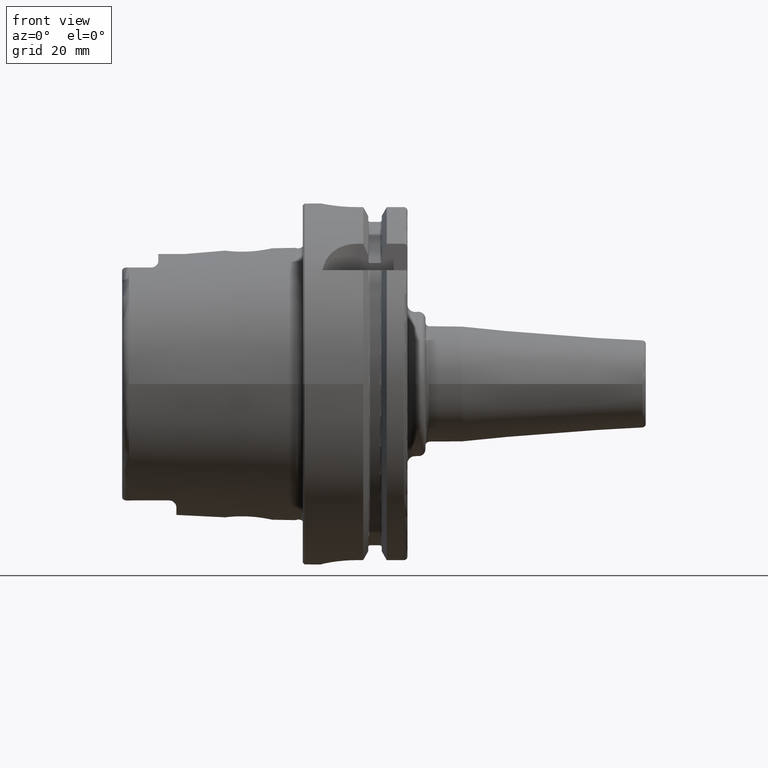
[diagram: clean part render]
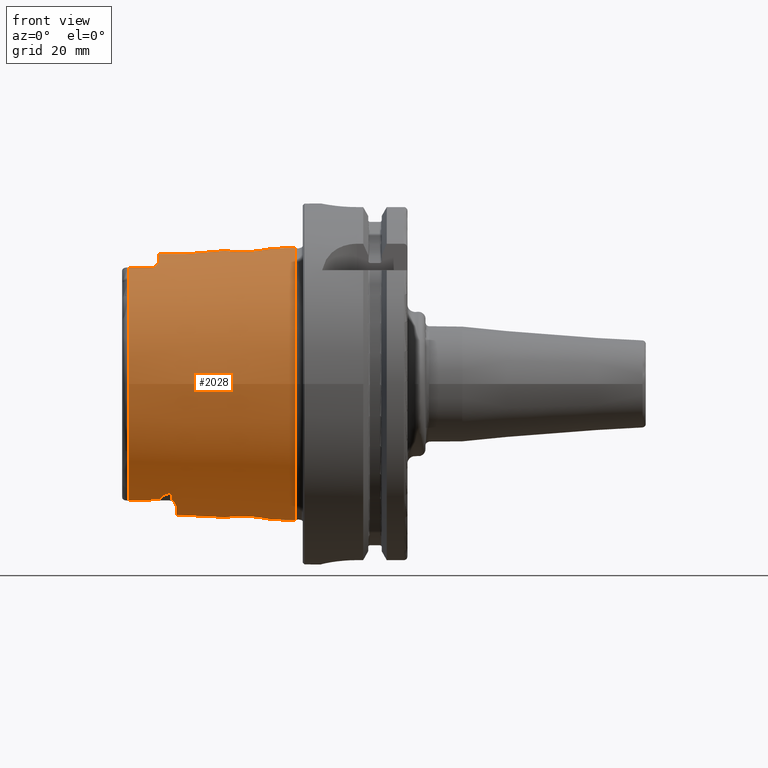
[diagram: same view with one face highlighted and labeled with its STEP entity id]
A machine part, front view. The second image highlights one B-rep face of the part: STEP entity #2028.
In plain terms, the highlighted conical surface has half-angle 2.868 deg.
Its self-contained STEP definition (entity closure, byte-faithful):
#15=(
BOUNDED_CURVE()
B_SPLINE_CURVE(2,(#3478,#3479,#3480),.UNSPECIFIED.,.F.,.F.)
B_SPLINE_CURVE_WITH_KNOTS((3,3),(0.584552731684763,1.01274112792473),
 .UNSPECIFIED.)
CURVE()
GEOMETRIC_REPRESENTATION_ITEM()
RATIONAL_B_SPLINE_CURVE((1.00299496728687,1.00299496728687,1.00138797244737))
REPRESENTATION_ITEM('')
);
#16=(
BOUNDED_CURVE()
B_SPLINE_CURVE(2,(#3547,#3548,#3549),.UNSPECIFIED.,.F.,.F.)
B_SPLINE_CURVE_WITH_KNOTS((3,3),(0.156364335444822,0.584552731684782),
 .UNSPECIFIED.)
CURVE()
GEOMETRIC_REPRESENTATION_ITEM()
RATIONAL_B_SPLINE_CURVE((1.00138797244738,1.00299496728688,1.00299496728688))
REPRESENTATION_ITEM('')
);
#32=B_SPLINE_CURVE_WITH_KNOTS('',3,(#3176,#3177,#3178,#3179,#3180,#3181,
#3182,#3183,#3184,#3185,#3186,#3187,#3188,#3189,#3190,#3191,#3192,#3193),
 .UNSPECIFIED.,.F.,.F.,(4,2,2,2,2,2,2,2,4),(1.82139636410114,1.83165892733975,
1.84192149057836,1.86244661705558,1.93660019990987,2.01075378276416,2.21475865094393,
2.41876351912369,2.7012608097453),.UNSPECIFIED.);
#34=B_SPLINE_CURVE_WITH_KNOTS('',3,(#3249,#3250,#3251,#3252,#3253,#3254,
#3255,#3256),.UNSPECIFIED.,.F.,.F.,(4,2,2,4),(2.11861414458057,2.2150675983984,
2.41910198133518,2.70152248778045),.UNSPECIFIED.);
#35=B_SPLINE_CURVE_WITH_KNOTS('',3,(#3273,#3274,#3275,#3276,#3277,#3278,
#3279,#3280),.UNSPECIFIED.,.F.,.F.,(4,2,2,4),(0.941785791175404,1.22420629762067,
1.42824068055745,1.52469413437528),.UNSPECIFIED.);
#39=B_SPLINE_CURVE_WITH_KNOTS('',3,(#3427,#3428,#3429,#3430,#3431,#3432,
#3433,#3434,#3435,#3436,#3437,#3438,#3439,#3440,#3441,#3442,#3443,#3444,
#3445,#3446,#3447,#3448,#3449,#3450),.UNSPECIFIED.,.T.,.F.,(4,1,1,1,1,1,
1,1,1,1,1,1,1,1,1,1,1,1,1,1,1,4),(-3.62526060553391,-3.36631341942435,-3.23683982636957,
-3.10736623331478,-2.91315584373261,-2.84841904720522,-2.58947186109565,
-2.41684040368928,-2.2442089462829,-2.07157748887652,-1.89894603147015,
-1.72631457406377,-1.55368311665739,-1.42420952360261,-1.29473593054783,
-1.16526233749304,-1.03578874443826,-0.776841558328696,-0.517894372219131,
-0.388420779164348,-0.258947186109565,0.),.UNSPECIFIED.);
#40=B_SPLINE_CURVE_WITH_KNOTS('',3,(#3459,#3460,#3461,#3462,#3463,#3464,
#3465,#3466,#3467,#3468,#3469,#3470,#3471,#3472,#3473,#3474,#3475,#3476),
 .UNSPECIFIED.,.F.,.F.,(4,2,2,2,2,2,2,2,4),(0.941531918456969,1.22402920907858,
1.42803407725834,1.6320389454381,1.70619252829239,1.78034611114668,1.80087123762391,
1.81113380086252,1.82139636410113),.UNSPECIFIED.);
#41=B_SPLINE_CURVE_WITH_KNOTS('',3,(#3482,#3483,#3484,#3485,#3486,#3487,
#3488,#3489,#3490,#3491,#3492,#3493,#3494,#3495,#3496,#3497,#3498,#3499),
 .UNSPECIFIED.,.F.,.F.,(4,2,2,2,2,2,2,2,4),(0.,0.135304265390776,0.202956398086165,
0.270608530781553,0.285985760505599,0.293674375367623,0.301362990229646,
0.309065814809453,0.312240543595572),.UNSPECIFIED.);
#42=B_SPLINE_CURVE_WITH_KNOTS('',3,(#3501,#3502,#3503,#3504,#3505,#3506,
#3507,#3508,#3509,#3510),.UNSPECIFIED.,.F.,.F.,(4,2,2,2,4),(0.355882377061024,
0.475337474766741,0.814409309765131,0.916871755852837,0.96838361555764),
 .UNSPECIFIED.);
#43=B_SPLINE_CURVE_WITH_KNOTS('',3,(#3514,#3515,#3516,#3517,#3518,#3519,
#3520,#3521,#3522,#3523,#3524,#3525,#3526,#3527),.UNSPECIFIED.,.F.,.F.,
(4,2,2,2,2,2,4),(0.968383615555967,0.974150710871355,1.03435732628962,1.16414359525928,
1.35274565404034,1.53834753535542,1.54014497255958),.UNSPECIFIED.);
#44=B_SPLINE_CURVE_WITH_KNOTS('',3,(#3529,#3530,#3531,#3532,#3533,#3534,
#3535,#3536,#3537,#3538,#3539,#3540,#3541,#3542,#3543,#3544,#3545,#3546),
 .UNSPECIFIED.,.F.,.F.,(4,2,2,2,2,2,2,2,4),(0.892798921569994,0.895973650356143,
0.90367647493595,0.911365089797973,0.919053704659997,0.934430934384044,
1.00208306707943,1.06973519977482,1.2050394651656),.UNSPECIFIED.);
#45=B_SPLINE_CURVE_WITH_KNOTS('',3,(#3552,#3553,#3554,#3555,#3556,#3557,
#3558,#3559,#3560,#3561,#3562,#3563,#3564,#3565,#3566,#3567),
 .UNSPECIFIED.,.F.,.F.,(4,2,2,2,2,2,2,4),(0.951925610593878,1.05814966490865,
1.29620724180457,1.38654842311884,1.45440735886397,1.51777192589664,1.5739379106757,
1.5771381713645),.UNSPECIFIED.);
#46=B_SPLINE_CURVE_WITH_KNOTS('',3,(#3570,#3571,#3572,#3573,#3574,#3575,
#3576,#3577,#3578,#3579,#3580,#3581,#3582,#3583),.UNSPECIFIED.,.F.,.F.,
(4,2,2,2,2,2,4),(0.58599893881899,0.631178615969429,0.682399631951053,0.741327952008913,
0.839467365471938,1.06407790070645,1.25314135766173),.UNSPECIFIED.);
#47=B_SPLINE_CURVE_WITH_KNOTS('',3,(#3586,#3587,#3588,#3589,#3590,#3591,
#3592,#3593,#3594,#3595,#3596,#3597,#3598,#3599,#3600,#3601,#3602,#3603,
#3604,#3605,#3606,#3607,#3608,#3609,#3610,#3611),.UNSPECIFIED.,.T.,.F.,
(4,1,1,1,1,1,1,1,1,1,1,1,1,1,1,1,1,1,1,1,1,1,1,4),(-3.62526060553391,-3.36631341942435,
-3.23683982636957,-3.13973463157848,-3.10736623331478,-2.84841904720522,
-2.58947186109565,-2.41684040368928,-2.2442089462829,-2.2010510819313,-2.07157748887652,
-1.89894603147015,-1.72631457406377,-1.55368311665739,-1.42420952360261,
-1.29473593054783,-1.16526233749304,-1.03578874443826,-0.776841558328696,
-0.712104761801304,-0.51789437221913,-0.388420779164348,-0.258947186109565,
0.),.UNSPECIFIED.);
#92=FACE_BOUND('',#373,.T.);
#93=FACE_BOUND('',#374,.T.);
#244=FACE_OUTER_BOUND('',#372,.T.);
#372=EDGE_LOOP('',(#1490,#1491,#1492,#1493,#1494,#1495,#1496,#1497,#1498,
#1499,#1500,#1501,#1502,#1503,#1504,#1505,#1506,#1507,#1508,#1509));
#373=EDGE_LOOP('',(#1510));
#374=EDGE_LOOP('',(#1511));
#505=LINE('',#3455,#611);
#611=VECTOR('',#2609,36.7524901081155);
#720=CIRCLE('',#2222,37.9073016032064);
#721=CIRCLE('',#2223,35.5976786130245);
#722=CIRCLE('',#2224,36.25399498998);
#723=CIRCLE('',#2225,35.5976786130245);
#724=CIRCLE('',#2226,36.003493987976);
#725=CIRCLE('',#2227,35.5976786130245);
#858=VERTEX_POINT('',#3162);
#859=VERTEX_POINT('',#3175);
#875=VERTEX_POINT('',#3235);
#876=VERTEX_POINT('',#3248);
#882=VERTEX_POINT('',#3270);
#883=VERTEX_POINT('',#3272);
#886=VERTEX_POINT('',#3395);
#889=VERTEX_POINT('',#3452);
#890=VERTEX_POINT('',#3454);
#891=VERTEX_POINT('',#3456);
#892=VERTEX_POINT('',#3458);
#893=VERTEX_POINT('',#3477);
#894=VERTEX_POINT('',#3481);
#895=VERTEX_POINT('',#3500);
#896=VERTEX_POINT('',#3511);
#897=VERTEX_POINT('',#3513);
#898=VERTEX_POINT('',#3528);
#899=VERTEX_POINT('',#3551);
#900=VERTEX_POINT('',#3568);
#901=VERTEX_POINT('',#3585);
#1080=EDGE_CURVE('',#859,#858,#32,.T.);
#1102=EDGE_CURVE('',#876,#875,#34,.T.);
#1110=EDGE_CURVE('',#883,#882,#35,.T.);
#1118=EDGE_CURVE('',#886,#886,#39,.T.);
#1119=EDGE_CURVE('',#889,#889,#720,.T.);
#1120=EDGE_CURVE('',#889,#890,#505,.T.);
#1121=EDGE_CURVE('',#890,#891,#721,.T.);
#1122=EDGE_CURVE('',#891,#892,#40,.T.);
#1123=EDGE_CURVE('',#892,#893,#15,.T.);
#1124=EDGE_CURVE('',#894,#893,#41,.T.);
#1125=EDGE_CURVE('',#895,#894,#42,.T.);
#1126=EDGE_CURVE('',#895,#896,#722,.T.);
#1127=EDGE_CURVE('',#897,#896,#43,.T.);
#1128=EDGE_CURVE('',#898,#897,#44,.T.);
#1129=EDGE_CURVE('',#898,#859,#16,.T.);
#1130=EDGE_CURVE('',#858,#883,#723,.T.);
#1131=EDGE_CURVE('',#899,#882,#45,.T.);
#1132=EDGE_CURVE('',#899,#900,#724,.T.);
#1133=EDGE_CURVE('',#876,#900,#46,.T.);
#1134=EDGE_CURVE('',#875,#890,#725,.T.);
#1135=EDGE_CURVE('',#901,#901,#47,.T.);
#1490=ORIENTED_EDGE('',*,*,#1119,.F.);
#1491=ORIENTED_EDGE('',*,*,#1120,.T.);
#1492=ORIENTED_EDGE('',*,*,#1121,.T.);
#1493=ORIENTED_EDGE('',*,*,#1122,.T.);
#1494=ORIENTED_EDGE('',*,*,#1123,.T.);
#1495=ORIENTED_EDGE('',*,*,#1124,.F.);
#1496=ORIENTED_EDGE('',*,*,#1125,.F.);
#1497=ORIENTED_EDGE('',*,*,#1126,.T.);
#1498=ORIENTED_EDGE('',*,*,#1127,.F.);
#1499=ORIENTED_EDGE('',*,*,#1128,.F.);
#1500=ORIENTED_EDGE('',*,*,#1129,.T.);
#1501=ORIENTED_EDGE('',*,*,#1080,.T.);
#1502=ORIENTED_EDGE('',*,*,#1130,.T.);
#1503=ORIENTED_EDGE('',*,*,#1110,.T.);
#1504=ORIENTED_EDGE('',*,*,#1131,.F.);
#1505=ORIENTED_EDGE('',*,*,#1132,.T.);
#1506=ORIENTED_EDGE('',*,*,#1133,.F.);
#1507=ORIENTED_EDGE('',*,*,#1102,.T.);
#1508=ORIENTED_EDGE('',*,*,#1134,.T.);
#1509=ORIENTED_EDGE('',*,*,#1120,.F.);
#1510=ORIENTED_EDGE('',*,*,#1135,.F.);
#1511=ORIENTED_EDGE('',*,*,#1118,.F.);
#1984=CONICAL_SURFACE('',#2221,36.7524901081155,0.0500583457465976);
#2028=ADVANCED_FACE('',(#244,#92,#93),#1984,.T.);
#2221=AXIS2_PLACEMENT_3D('',#3451,#2605,#2606);
#2222=AXIS2_PLACEMENT_3D('',#3453,#2607,#2608);
#2223=AXIS2_PLACEMENT_3D('',#3457,#2610,#2611);
#2224=AXIS2_PLACEMENT_3D('',#3512,#2612,#2613);
#2225=AXIS2_PLACEMENT_3D('',#3550,#2614,#2615);
#2226=AXIS2_PLACEMENT_3D('',#3569,#2616,#2617);
#2227=AXIS2_PLACEMENT_3D('',#3584,#2618,#2619);
#2605=DIRECTION('center_axis',(1.,0.,0.));
#2606=DIRECTION('ref_axis',(0.,1.,0.));
#2607=DIRECTION('center_axis',(1.,0.,0.));
#2608=DIRECTION('ref_axis',(0.,0.,-1.));
#2609=DIRECTION('',(-0.998747342623037,0.0500374420151823,6.12781932014143E-18));
#2610=DIRECTION('center_axis',(1.,0.,0.));
#2611=DIRECTION('ref_axis',(0.,0.,-1.));
#2612=DIRECTION('center_axis',(1.,0.,0.));
#2613=DIRECTION('ref_axis',(0.,1.,0.));
#2614=DIRECTION('center_axis',(1.,0.,0.));
#2615=DIRECTION('ref_axis',(0.,0.,-1.));
#2616=DIRECTION('center_axis',(1.,0.,0.));
#2617=DIRECTION('ref_axis',(0.,1.,0.));
#2618=DIRECTION('center_axis',(1.,0.,0.));
#2619=DIRECTION('ref_axis',(0.,0.,-1.));
#3162=CARTESIAN_POINT('',(-48.1000748840304,15.0787152148571,-32.2463497175327));
#3175=CARTESIAN_POINT('',(-39.3086860506441,17.2220784153651,-31.6567015600095));
#3176=CARTESIAN_POINT('Ctrl Pts',(-39.3086860506439,17.2220784153651,-31.6567015600096));
#3177=CARTESIAN_POINT('Ctrl Pts',(-39.3086860506439,17.1920288621925,-31.6730493074242));
#3178=CARTESIAN_POINT('Ctrl Pts',(-39.3149778656361,17.1622985367362,-31.6888083298259));
#3179=CARTESIAN_POINT('Ctrl Pts',(-39.3379356243704,17.1047575471073,-31.7185977246152));
#3180=CARTESIAN_POINT('Ctrl Pts',(-39.3545931085757,17.0769444761517,-31.7326299669));
#3181=CARTESIAN_POINT('Ctrl Pts',(-39.41492287308,16.9977687004959,-31.7717242618145));
#3182=CARTESIAN_POINT('Ctrl Pts',(-39.4690330405114,16.9505386197656,-31.7938497879436));
#3183=CARTESIAN_POINT('Ctrl Pts',(-39.7137538085318,16.7691556019457,-31.8763882092881));
#3184=CARTESIAN_POINT('Ctrl Pts',(-39.9557031082111,16.6668123685081,-31.9161154581445));
#3185=CARTESIAN_POINT('Ctrl Pts',(-40.4538120390228,16.4807891402054,-31.9844991546727));
#3186=CARTESIAN_POINT('Ctrl Pts',(-40.7121103138056,16.4018770942044,-32.0104206666339));
#3187=CARTESIAN_POINT('Ctrl Pts',(-41.6015350915672,16.1516844838416,-32.0879931345296));
#3188=CARTESIAN_POINT('Ctrl Pts',(-42.2774968259687,16.0065639510366,-32.1225120780024));
#3189=CARTESIAN_POINT('Ctrl Pts',(-43.6583569770469,15.7387900082285,-32.1775602969968));
#3190=CARTESIAN_POINT('Ctrl Pts',(-44.3638273319757,15.6187903492069,-32.19660809961));
#3191=CARTESIAN_POINT('Ctrl Pts',(-46.0708874643597,15.3507400024476,-32.2307282620297));
#3192=CARTESIAN_POINT('Ctrl Pts',(-47.0815953489825,15.2100460868363,-32.2412671998384));
#3193=CARTESIAN_POINT('Ctrl Pts',(-48.1000748840303,15.0787152148571,-32.2463497175327));
#3235=CARTESIAN_POINT('',(-48.1000748840304,-15.0787152148571,32.2463497175327));
#3248=CARTESIAN_POINT('',(-42.0000000002536,-16.0736316900317,32.1042809403702));
#3249=CARTESIAN_POINT('Ctrl Pts',(-42.0000000002663,-16.0736316900856,32.1042809403568));
#3250=CARTESIAN_POINT('Ctrl Pts',(-42.3189705746531,-16.0023328339441,32.122106579912));
#3251=CARTESIAN_POINT('Ctrl Pts',(-42.6420078541405,-15.9358744877955,32.1370456038288));
#3252=CARTESIAN_POINT('Ctrl Pts',(-43.6589764923173,-15.7386786248219,32.177580265585));
#3253=CARTESIAN_POINT('Ctrl Pts',(-44.364550975751,-15.6186692080222,32.1966265955614));
#3254=CARTESIAN_POINT('Ctrl Pts',(-46.0714496280263,-15.3506621075505,32.2307339275334));
#3255=CARTESIAN_POINT('Ctrl Pts',(-47.0818768820559,-15.210009783717,32.2412686047727));
#3256=CARTESIAN_POINT('Ctrl Pts',(-48.1000748840304,-15.0787152148571,32.2463497175327));
#3270=CARTESIAN_POINT('',(-42.0000000002536,16.0736316900317,32.1042809403702));
#3272=CARTESIAN_POINT('',(-48.1000748840304,15.0787152148571,32.2463497175327));
#3273=CARTESIAN_POINT('Ctrl Pts',(-48.1000748840304,15.0787152148571,32.2463497175327));
#3274=CARTESIAN_POINT('Ctrl Pts',(-47.0818768820559,15.210009783717,32.2412686047727));
#3275=CARTESIAN_POINT('Ctrl Pts',(-46.0714496280263,15.3506621075505,32.2307339275334));
#3276=CARTESIAN_POINT('Ctrl Pts',(-44.364550975751,15.6186692080222,32.1966265955614));
#3277=CARTESIAN_POINT('Ctrl Pts',(-43.6589764923172,15.7386786248219,32.177580265585));
#3278=CARTESIAN_POINT('Ctrl Pts',(-42.6420078541405,15.9358744877955,32.1370456038288));
#3279=CARTESIAN_POINT('Ctrl Pts',(-42.3189705746531,16.0023328339441,32.122106579912));
#3280=CARTESIAN_POINT('Ctrl Pts',(-42.0000000002663,16.0736316900856,32.1042809403568));
#3395=CARTESIAN_POINT('',(-15.0482435047104,6.49272743621066,-36.6834276129017));
#3427=CARTESIAN_POINT('Ctrl Pts',(-15.0482435047104,6.49272743621066,-36.6834276129017));
#3428=CARTESIAN_POINT('Ctrl Pts',(-14.1135545674523,6.50026995600844,-36.7296485677624));
#3429=CARTESIAN_POINT('Ctrl Pts',(-12.6125862949105,6.18830817118321,-36.8646717861154));
#3430=CARTESIAN_POINT('Ctrl Pts',(-10.9355263213122,5.13385394303874,-37.1097128714846));
#3431=CARTESIAN_POINT('Ctrl Pts',(-9.77420691042437,3.99872482551772,-37.3124990416381));
#3432=CARTESIAN_POINT('Ctrl Pts',(-9.01389114298067,2.6908920183028,-37.4692616165149));
#3433=CARTESIAN_POINT('Ctrl Pts',(-8.45620136187699,0.783918842134784,-37.5909415665212));
#3434=CARTESIAN_POINT('Ctrl Pts',(-8.42050281053454,-1.03174264349175,-37.5987683444945));
#3435=CARTESIAN_POINT('Ctrl Pts',(-9.26297266549275,-3.26583075674904,-37.4147206754643));
#3436=CARTESIAN_POINT('Ctrl Pts',(-10.458492519938,-4.76885929810559,-37.1861403632723));
#3437=CARTESIAN_POINT('Ctrl Pts',(-12.0228887870965,-5.89032438834427,-36.9420532655873));
#3438=CARTESIAN_POINT('Ctrl Pts',(-13.9680532212746,-6.50710199210242,-36.7359370633354));
#3439=CARTESIAN_POINT('Ctrl Pts',(-15.8440764393336,-6.52958618717481,-36.6362816769022));
#3440=CARTESIAN_POINT('Ctrl Pts',(-17.6300730630046,-6.03011079587191,-36.6335589552162));
#3441=CARTESIAN_POINT('Ctrl Pts',(-19.0454046322519,-5.14759442471502,-36.6975665887127));
#3442=CARTESIAN_POINT('Ctrl Pts',(-20.0509032742539,-4.16499804110167,-36.7727593560743));
#3443=CARTESIAN_POINT('Ctrl Pts',(-20.8701749498926,-2.92631384107143,-36.8543936474532));
#3444=CARTESIAN_POINT('Ctrl Pts',(-21.5409373453018,-1.02232892624704,-36.9349482957206));
#3445=CARTESIAN_POINT('Ctrl Pts',(-21.5837880668158,1.35571299008144,-36.9401169281877));
#3446=CARTESIAN_POINT('Ctrl Pts',(-20.4818838939864,3.73437449889082,-36.8075944881395));
#3447=CARTESIAN_POINT('Ctrl Pts',(-19.1568247034836,5.05418616406115,-36.7047525113947));
#3448=CARTESIAN_POINT('Ctrl Pts',(-17.4931824437517,6.14967739850973,-36.6242770442053));
#3449=CARTESIAN_POINT('Ctrl Pts',(-15.9829324419684,6.48518491641288,-36.637206658041));
#3450=CARTESIAN_POINT('Ctrl Pts',(-15.0482435047104,6.49272743621066,-36.6834276129017));
#3451=CARTESIAN_POINT('Origin',(-25.0500374420152,0.,0.));
#3452=CARTESIAN_POINT('',(-2.,-37.9073016032064,-4.64230555726801E-15));
#3453=CARTESIAN_POINT('Origin',(-2.,0.,0.));
#3454=CARTESIAN_POINT('',(-48.1000748840304,-35.5976786130245,-4.35945831705167E-15));
#3455=CARTESIAN_POINT('',(-25.0500374420152,-36.7524901081155,-4.50088193715984E-15));
#3456=CARTESIAN_POINT('',(-48.1000748840304,-15.0787152148571,-32.2463497175327));
#3457=CARTESIAN_POINT('Origin',(-48.1000748840304,0.,0.));
#3458=CARTESIAN_POINT('',(-39.3086860506441,-17.2220784153651,-31.6567015600095));
#3459=CARTESIAN_POINT('Ctrl Pts',(-48.1000748840304,-15.0787152148571,-32.2463497175327));
#3460=CARTESIAN_POINT('Ctrl Pts',(-47.0815953489825,-15.2100460868363,-32.2412671998384));
#3461=CARTESIAN_POINT('Ctrl Pts',(-46.0708874643597,-15.3507400024476,-32.2307282620297));
#3462=CARTESIAN_POINT('Ctrl Pts',(-44.3638273319757,-15.6187903492069,-32.19660809961));
#3463=CARTESIAN_POINT('Ctrl Pts',(-43.6583569770469,-15.7387900082285,-32.1775602969968));
#3464=CARTESIAN_POINT('Ctrl Pts',(-42.2774968259687,-16.0065639510366,-32.1225120780024));
#3465=CARTESIAN_POINT('Ctrl Pts',(-41.6015350915672,-16.1516844838416,-32.0879931345296));
#3466=CARTESIAN_POINT('Ctrl Pts',(-40.7121103138057,-16.4018770942044,-32.0104206666339));
#3467=CARTESIAN_POINT('Ctrl Pts',(-40.4538120390228,-16.4807891402054,-31.9844991546726));
#3468=CARTESIAN_POINT('Ctrl Pts',(-39.9557031082111,-16.6668123685081,-31.9161154581445));
#3469=CARTESIAN_POINT('Ctrl Pts',(-39.7137538085319,-16.7691556019457,-31.8763882092881));
#3470=CARTESIAN_POINT('Ctrl Pts',(-39.4690330405114,-16.9505386197656,-31.7938497879436));
#3471=CARTESIAN_POINT('Ctrl Pts',(-39.41492287308,-16.9977687004959,-31.7717242618145));
#3472=CARTESIAN_POINT('Ctrl Pts',(-39.3545931085758,-17.0769444761517,-31.7326299669));
#3473=CARTESIAN_POINT('Ctrl Pts',(-39.3379356243703,-17.1047575471073,-31.7185977246152));
#3474=CARTESIAN_POINT('Ctrl Pts',(-39.314977865636,-17.1622985367361,-31.688808329826));
#3475=CARTESIAN_POINT('Ctrl Pts',(-39.3086860506439,-17.1920288621925,-31.6730493074242));
#3476=CARTESIAN_POINT('Ctrl Pts',(-39.3086860506439,-17.2220784153651,-31.6567015600096));
#3477=CARTESIAN_POINT('',(-36.9999999999998,-19.7604190654811,-30.275777472314));
#3478=CARTESIAN_POINT('Ctrl Pts',(-39.3086860506441,-17.2220784153651,-31.6567015600095));
#3479=CARTESIAN_POINT('Ctrl Pts',(-39.3086860506441,-18.4892152804039,-30.9673457719047));
#3480=CARTESIAN_POINT('Ctrl Pts',(-37.0000000000089,-19.760419065476,-30.2757774723168));
#3481=CARTESIAN_POINT('',(-36.2297931655992,-17.2957936700592,-31.7922009905656));
#3482=CARTESIAN_POINT('Ctrl Pts',(-36.2297931655991,-17.2957936700592,-31.7922009905656));
#3483=CARTESIAN_POINT('Ctrl Pts',(-36.2297931655991,-17.6919746847632,-31.5766680965597));
#3484=CARTESIAN_POINT('Ctrl Pts',(-36.2521990165892,-18.1190045646745,-31.3326752508756));
#3485=CARTESIAN_POINT('Ctrl Pts',(-36.3408092415002,-18.7314387685111,-30.9624943289716));
#3486=CARTESIAN_POINT('Ctrl Pts',(-36.3790895444364,-18.9299841471613,-30.8391450528654));
#3487=CARTESIAN_POINT('Ctrl Pts',(-36.4852329136377,-19.306843178886,-30.5983353090591));
#3488=CARTESIAN_POINT('Ctrl Pts',(-36.5439103950281,-19.4871821233798,-30.4800880558704));
#3489=CARTESIAN_POINT('Ctrl Pts',(-36.6912326687357,-19.6798076445983,-30.3467082687203));
#3490=CARTESIAN_POINT('Ctrl Pts',(-36.7249701183787,-19.7165113518141,-30.3208469816645));
#3491=CARTESIAN_POINT('Ctrl Pts',(-36.7841864173308,-19.7579943063986,-30.290274608581));
#3492=CARTESIAN_POINT('Ctrl Pts',(-36.8053838947294,-19.7694984454156,-30.2814962901986));
#3493=CARTESIAN_POINT('Ctrl Pts',(-36.8506143317697,-19.7854180725537,-30.2683898183443));
#3494=CARTESIAN_POINT('Ctrl Pts',(-36.8746547533364,-19.7898201350064,-30.264071114845));
#3495=CARTESIAN_POINT('Ctrl Pts',(-36.925895284142,-19.7884151696532,-30.2619225368856));
#3496=CARTESIAN_POINT('Ctrl Pts',(-36.9499861453108,-19.7826799175172,-30.2642318432453));
#3497=CARTESIAN_POINT('Ctrl Pts',(-36.9820207117301,-19.7696848900689,-30.2708039920388));
#3498=CARTESIAN_POINT('Ctrl Pts',(-36.9911306097576,-19.7653027102035,-30.273120641115));
#3499=CARTESIAN_POINT('Ctrl Pts',(-36.9999999999997,-19.760419065481,-30.275777472314));
#3500=CARTESIAN_POINT('',(-35.,-12.7918651267415,-33.9222690767105));
#3501=CARTESIAN_POINT('Ctrl Pts',(-35.,-12.7918651267426,-33.9222690767101));
#3502=CARTESIAN_POINT('Ctrl Pts',(-35.0000000000001,-13.2716695445343,-33.7413379784475));
#3503=CARTESIAN_POINT('Ctrl Pts',(-35.0765460606978,-13.7105867284853,-33.5594062083601));
#3504=CARTESIAN_POINT('Ctrl Pts',(-35.3935172162449,-15.0275145848391,-32.9882321567447));
#3505=CARTESIAN_POINT('Ctrl Pts',(-35.8272793338039,-15.8448282797016,-32.5701705725068));
#3506=CARTESIAN_POINT('Ctrl Pts',(-36.1303536788273,-16.6786905371956,-32.126600714556));
#3507=CARTESIAN_POINT('Ctrl Pts',(-36.1820664850684,-16.8557754437463,-32.030984619072));
#3508=CARTESIAN_POINT('Ctrl Pts',(-36.2225122577352,-17.1184652869411,-31.8886039957027));
#3509=CARTESIAN_POINT('Ctrl Pts',(-36.2297931655992,-17.2061020907562,-31.8409955691488));
#3510=CARTESIAN_POINT('Ctrl Pts',(-36.2297931655992,-17.2957936700592,-31.7922009905656));
#3511=CARTESIAN_POINT('',(-35.,12.7918651267415,-33.9222690767105));
#3512=CARTESIAN_POINT('Origin',(-35.,0.,0.));
#3513=CARTESIAN_POINT('',(-36.2297931655992,17.2957936700592,-31.7922009905656));
#3514=CARTESIAN_POINT('Ctrl Pts',(-36.2297931655992,17.2957936700592,-31.7922009905656));
#3515=CARTESIAN_POINT('Ctrl Pts',(-36.2297931655992,17.2857521011896,-31.7976638681859));
#3516=CARTESIAN_POINT('Ctrl Pts',(-36.2297018732724,17.2756840159163,-31.8031402140989));
#3517=CARTESIAN_POINT('Ctrl Pts',(-36.2275970792751,17.1601682556352,-31.8659616470356));
#3518=CARTESIAN_POINT('Ctrl Pts',(-36.2156218316917,17.0562072347613,-31.922407942335));
#3519=CARTESIAN_POINT('Ctrl Pts',(-36.1505093185127,16.7229293390599,-32.1027521967692));
#3520=CARTESIAN_POINT('Ctrl Pts',(-36.065134056668,16.4848506381079,-32.2308215310631));
#3521=CARTESIAN_POINT('Ctrl Pts',(-35.7984585549742,15.8312737268516,-32.5732245714574));
#3522=CARTESIAN_POINT('Ctrl Pts',(-35.5744019673667,15.3507133777923,-32.8174718312589));
#3523=CARTESIAN_POINT('Ctrl Pts',(-35.1938633470317,14.2651773499191,-33.3242510091415));
#3524=CARTESIAN_POINT('Ctrl Pts',(-35.0037140190077,13.5715015976815,-33.6275053772421));
#3525=CARTESIAN_POINT('Ctrl Pts',(-35.0000176891147,12.8065033311274,-33.9167454576574));
#3526=CARTESIAN_POINT('Ctrl Pts',(-35.,12.7991780985434,-33.9195114030197));
#3527=CARTESIAN_POINT('Ctrl Pts',(-35.,12.7918651267414,-33.9222690767105));
#3528=CARTESIAN_POINT('',(-37.,19.7604190654809,-30.2757774723141));
#3529=CARTESIAN_POINT('Ctrl Pts',(-37.,19.760419065481,-30.2757774723141));
#3530=CARTESIAN_POINT('Ctrl Pts',(-36.9911306097578,19.7653027102035,-30.273120641115));
#3531=CARTESIAN_POINT('Ctrl Pts',(-36.9820207117302,19.769684890069,-30.2708039920388));
#3532=CARTESIAN_POINT('Ctrl Pts',(-36.9499861453108,19.7826799175173,-30.2642318432453));
#3533=CARTESIAN_POINT('Ctrl Pts',(-36.925895284142,19.7884151696532,-30.2619225368856));
#3534=CARTESIAN_POINT('Ctrl Pts',(-36.8746547533364,19.7898201350064,-30.264071114845));
#3535=CARTESIAN_POINT('Ctrl Pts',(-36.8506143317697,19.7854180725537,-30.2683898183443));
#3536=CARTESIAN_POINT('Ctrl Pts',(-36.8053838947294,19.7694984454156,-30.2814962901986));
#3537=CARTESIAN_POINT('Ctrl Pts',(-36.7841864173308,19.7579943063986,-30.290274608581));
#3538=CARTESIAN_POINT('Ctrl Pts',(-36.7249701183787,19.7165113518141,-30.3208469816645));
#3539=CARTESIAN_POINT('Ctrl Pts',(-36.6912326687357,19.6798076445984,-30.3467082687203));
#3540=CARTESIAN_POINT('Ctrl Pts',(-36.5439103950281,19.4871821233798,-30.4800880558704));
#3541=CARTESIAN_POINT('Ctrl Pts',(-36.4852329136378,19.306843178886,-30.5983353090591));
#3542=CARTESIAN_POINT('Ctrl Pts',(-36.3790895444365,18.9299841471613,-30.8391450528654));
#3543=CARTESIAN_POINT('Ctrl Pts',(-36.3408092415002,18.7314387685111,-30.9624943289715));
#3544=CARTESIAN_POINT('Ctrl Pts',(-36.2521990165892,18.1190045646745,-31.3326752508756));
#3545=CARTESIAN_POINT('Ctrl Pts',(-36.2297931655991,17.6919746847632,-31.5766680965597));
#3546=CARTESIAN_POINT('Ctrl Pts',(-36.2297931655991,17.2957936700592,-31.7922009905656));
#3547=CARTESIAN_POINT('Ctrl Pts',(-37.0000000000092,19.7604190654759,-30.2757774723168));
#3548=CARTESIAN_POINT('Ctrl Pts',(-39.3086860506441,18.4892152804039,-30.9673457719048));
#3549=CARTESIAN_POINT('Ctrl Pts',(-39.3086860506441,17.2220784153651,-31.6567015600095));
#3550=CARTESIAN_POINT('Origin',(-48.1000748840304,0.,0.));
#3551=CARTESIAN_POINT('',(-40.,12.4227760464511,33.7923987701664));
#3552=CARTESIAN_POINT('Ctrl Pts',(-40.,12.4227760464511,33.7923987701664));
#3553=CARTESIAN_POINT('Ctrl Pts',(-40.,12.7419527823378,33.6750628824087));
#3554=CARTESIAN_POINT('Ctrl Pts',(-40.0375731646412,13.0776475996579,33.5444889562855));
#3555=CARTESIAN_POINT('Ctrl Pts',(-40.2952030220137,14.204338882917,33.0777059010272));
#3556=CARTESIAN_POINT('Ctrl Pts',(-40.646555500088,14.8752966004784,32.7549341580208));
#3557=CARTESIAN_POINT('Ctrl Pts',(-41.0603895118526,15.4779630836856,32.44836211168));
#3558=CARTESIAN_POINT('Ctrl Pts',(-41.1980205087673,15.6556849566356,32.3552047227428));
#3559=CARTESIAN_POINT('Ctrl Pts',(-41.4545269599315,15.9060673278644,32.2183420240425));
#3560=CARTESIAN_POINT('Ctrl Pts',(-41.5436022580114,15.9688653327575,32.1820824055277));
#3561=CARTESIAN_POINT('Ctrl Pts',(-41.6853529076114,16.0463920787515,32.1355548450209));
#3562=CARTESIAN_POINT('Ctrl Pts',(-41.7512744555391,16.0697812119561,32.1201454390566));
#3563=CARTESIAN_POINT('Ctrl Pts',(-41.8741794719293,16.0889724726195,32.1036488638476));
#3564=CARTESIAN_POINT('Ctrl Pts',(-41.9317167825714,16.0876211043841,32.1011018387604));
#3565=CARTESIAN_POINT('Ctrl Pts',(-41.9933777503431,16.0750788518127,32.1039274012118));
#3566=CARTESIAN_POINT('Ctrl Pts',(-41.9966932024657,16.0743708520026,32.1040961402821));
#3567=CARTESIAN_POINT('Ctrl Pts',(-42.0000000002664,16.0736316900856,32.1042809403568));
#3568=CARTESIAN_POINT('',(-40.,-12.4227760464511,33.7923987701664));
#3569=CARTESIAN_POINT('Origin',(-40.,0.,0.));
#3570=CARTESIAN_POINT('Ctrl Pts',(-42.0000000002664,-16.0736316900856,32.1042809403568));
#3571=CARTESIAN_POINT('Ctrl Pts',(-41.9532981877176,-16.0840708530993,32.1016710140877));
#3572=CARTESIAN_POINT('Ctrl Pts',(-41.9050462288341,-16.0882872456028,32.1022609254704));
#3573=CARTESIAN_POINT('Ctrl Pts',(-41.7973675228035,-16.0800004321419,32.1124461122313));
#3574=CARTESIAN_POINT('Ctrl Pts',(-41.7413360757048,-16.0653619433608,32.1229212478587));
#3575=CARTESIAN_POINT('Ctrl Pts',(-41.6239822044533,-16.0165128109429,32.1538775766807));
#3576=CARTESIAN_POINT('Ctrl Pts',(-41.5522675623989,-15.9755629601737,32.1783316856742));
#3577=CARTESIAN_POINT('Ctrl Pts',(-41.3277927134023,-15.7966592313301,32.2792175155224));
#3578=CARTESIAN_POINT('Ctrl Pts',(-41.1901764677993,-15.6399550711414,32.3632616530429));
#3579=CARTESIAN_POINT('Ctrl Pts',(-40.8198003078492,-15.1566985557665,32.6146257404162));
#3580=CARTESIAN_POINT('Ctrl Pts',(-40.5143326017071,-14.6456107207803,32.868966839454));
#3581=CARTESIAN_POINT('Ctrl Pts',(-40.1039820766269,-13.4955400218785,33.3777943404952));
#3582=CARTESIAN_POINT('Ctrl Pts',(-40.,-12.9546784960247,33.5968605648276));
#3583=CARTESIAN_POINT('Ctrl Pts',(-40.,-12.422776046451,33.7923987701664));
#3584=CARTESIAN_POINT('Origin',(-48.1000748840304,0.,0.));
#3585=CARTESIAN_POINT('',(-15.0482435047104,6.49272743621066,36.6834276129017));
#3586=CARTESIAN_POINT('Ctrl Pts',(-15.0482435047104,6.49272743621066,36.6834276129017));
#3587=CARTESIAN_POINT('Ctrl Pts',(-15.9829324419684,6.48518491641288,36.637206658041));
#3588=CARTESIAN_POINT('Ctrl Pts',(-17.4866023410943,6.1492077495217,36.6235790675961));
#3589=CARTESIAN_POINT('Ctrl Pts',(-19.0577948349359,5.12534251951808,36.7000400389206));
#3590=CARTESIAN_POINT('Ctrl Pts',(-19.7285341214944,4.47535633862254,36.7489785200356));
#3591=CARTESIAN_POINT('Ctrl Pts',(-20.6550188198957,3.37673173572321,36.8280268143641));
#3592=CARTESIAN_POINT('Ctrl Pts',(-21.5767265446075,1.36398348816804,36.93957893606));
#3593=CARTESIAN_POINT('Ctrl Pts',(-21.546724865986,-1.1898750248608,36.9354628300056));
#3594=CARTESIAN_POINT('Ctrl Pts',(-20.6614810285301,-3.39819593521009,36.8298067136365));
#3595=CARTESIAN_POINT('Ctrl Pts',(-19.7299275837876,-4.50878451478095,36.7460018871591));
#3596=CARTESIAN_POINT('Ctrl Pts',(-18.7617072817101,-5.32584036574977,36.6848153804274));
#3597=CARTESIAN_POINT('Ctrl Pts',(-17.6257926470054,-6.02949389457767,36.6338999971975));
#3598=CARTESIAN_POINT('Ctrl Pts',(-15.8516352881468,-6.52976180497178,36.6358727150011));
#3599=CARTESIAN_POINT('Ctrl Pts',(-13.9603354002875,-6.5058868548532,36.736639679508));
#3600=CARTESIAN_POINT('Ctrl Pts',(-12.1928929992637,-5.95072068791055,36.9230706723905));
#3601=CARTESIAN_POINT('Ctrl Pts',(-10.8263000201084,-5.04719821437838,37.1274642889699));
#3602=CARTESIAN_POINT('Ctrl Pts',(-9.85299902234014,-4.05128459645323,37.299862620781));
#3603=CARTESIAN_POINT('Ctrl Pts',(-9.06190637750763,-2.78872073232155,37.4584370687624));
#3604=CARTESIAN_POINT('Ctrl Pts',(-8.43391629856387,-0.884062695565897,
37.5960041726761));
#3605=CARTESIAN_POINT('Ctrl Pts',(-8.45410064609006,0.788619655243524,37.5913278334431));
#3606=CARTESIAN_POINT('Ctrl Pts',(-9.01441929574745,2.69257857020313,37.4691269556054));
#3607=CARTESIAN_POINT('Ctrl Pts',(-9.77284187476569,3.99984728471339,37.3126901456211));
#3608=CARTESIAN_POINT('Ctrl Pts',(-10.9362389650119,5.13567294871907,37.1096157994659));
#3609=CARTESIAN_POINT('Ctrl Pts',(-12.6128004271058,6.18896987535432,36.8645846653909));
#3610=CARTESIAN_POINT('Ctrl Pts',(-14.1135545674523,6.50026995600844,36.7296485677624));
#3611=CARTESIAN_POINT('Ctrl Pts',(-15.0482435047104,6.49272743621066,36.6834276129017));